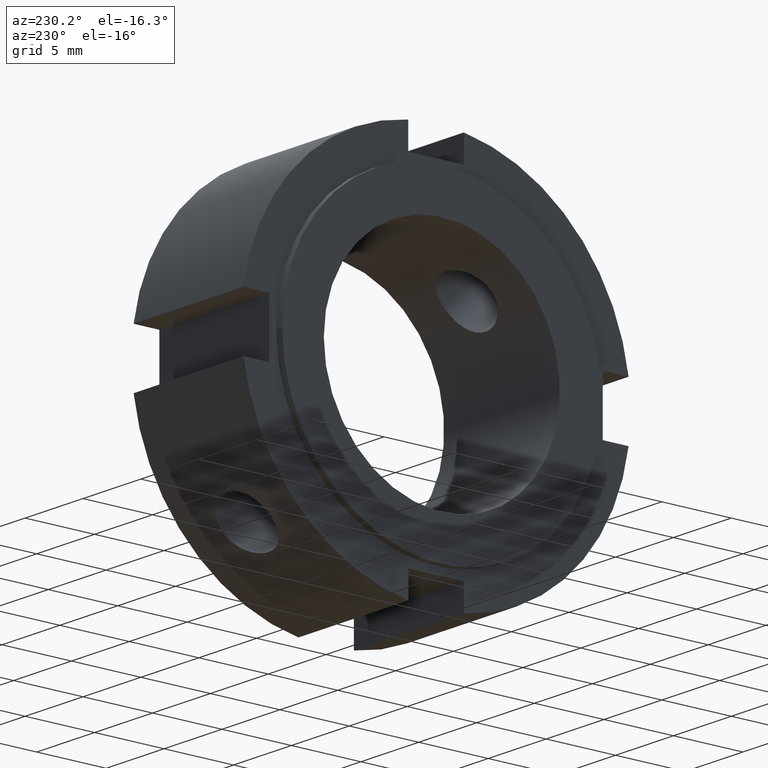
[diagram: clean part render]
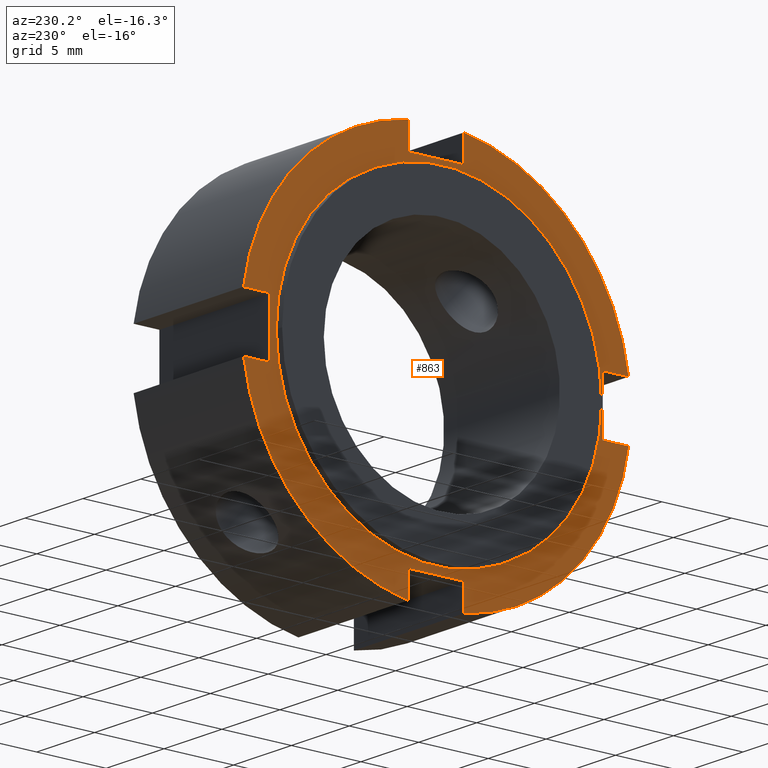
[diagram: same view with one face highlighted and labeled with its STEP entity id]
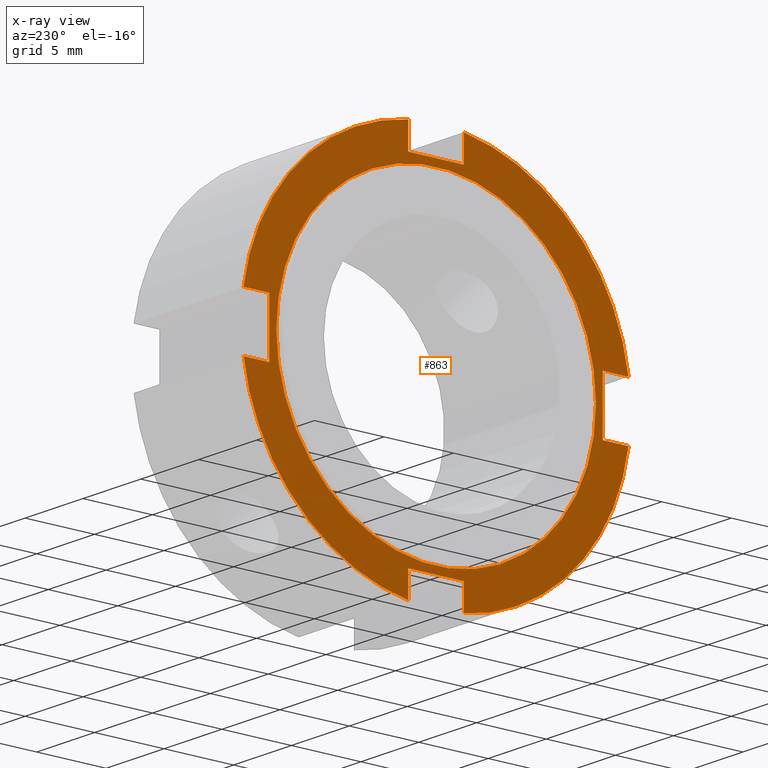
[diagram: x-ray of the same camera — body ghosted, the highlighted face saturated]
A machine part, auxiliary view. The second image highlights one B-rep face of the part: STEP entity #863.
The next image is the same camera in x-ray: the body ghosted, the highlighted face saturated — about 0% of this face is hidden behind the body in this view.
In plain terms, the highlighted planar face has unit normal (-1, 0, 0).
Its self-contained STEP definition (entity closure, byte-faithful):
#249=CARTESIAN_POINT('',(0.499999999999998,-2.000000000000002,-12.0));
#250=VERTEX_POINT('',#249);
#251=CARTESIAN_POINT('',(0.499999999999998,-2.000000000000002,-13.856406460551014));
#252=VERTEX_POINT('',#251);
#253=CARTESIAN_POINT('',(0.499999999999998,-2.000000000000002,-12.0));
#254=DIRECTION('',(0.0,0.0,-1.0));
#255=VECTOR('',#254,1.856406460551014);
#256=LINE('',#253,#255);
#257=EDGE_CURVE('',#250,#252,#256,.T.);
#289=CARTESIAN_POINT('',(0.499999999999998,1.999999999999997,-13.856406460551014));
#290=VERTEX_POINT('',#289);
#291=CARTESIAN_POINT('',(0.499999999999998,1.999999999999998,-12.0));
#292=VERTEX_POINT('',#291);
#293=CARTESIAN_POINT('',(0.499999999999998,1.999999999999997,-13.856406460551014));
#294=DIRECTION('',(0.0,0.0,1.0));
#295=VECTOR('',#294,1.856406460551014);
#296=LINE('',#293,#295);
#297=EDGE_CURVE('',#290,#292,#296,.T.);
#329=CARTESIAN_POINT('',(0.499999999999998,1.999999999999997,-12.0));
#330=DIRECTION('',(0.0,-1.0,0.0));
#331=VECTOR('',#330,3.999999999999998);
#332=LINE('',#329,#331);
#333=EDGE_CURVE('',#292,#250,#332,.T.);
#351=CARTESIAN_POINT('',(0.499999999999998,-12.0,2.000000000000001));
#352=VERTEX_POINT('',#351);
#353=CARTESIAN_POINT('',(0.499999999999998,-13.856406460551014,2.000000000000001));
#354=VERTEX_POINT('',#353);
#355=CARTESIAN_POINT('',(0.499999999999998,-12.0,2.000000000000001));
#356=DIRECTION('',(0.0,-1.0,0.0));
#357=VECTOR('',#356,1.856406460551014);
#358=LINE('',#355,#357);
#359=EDGE_CURVE('',#352,#354,#358,.T.);
#391=CARTESIAN_POINT('',(0.499999999999998,-13.856406460551014,-1.999999999999998));
#392=VERTEX_POINT('',#391);
#393=CARTESIAN_POINT('',(0.499999999999998,-12.0,-1.999999999999998));
#394=VERTEX_POINT('',#393);
#395=CARTESIAN_POINT('',(0.499999999999998,-13.856406460551014,-1.999999999999998));
#396=DIRECTION('',(0.0,1.0,0.0));
#397=VECTOR('',#396,1.856406460551014);
#398=LINE('',#395,#397);
#399=EDGE_CURVE('',#392,#394,#398,.T.);
#431=CARTESIAN_POINT('',(0.499999999999998,-11.999999999999996,-1.999999999999998));
#432=DIRECTION('',(0.0,0.0,1.0));
#433=VECTOR('',#432,4.0);
#434=LINE('',#431,#433);
#435=EDGE_CURVE('',#394,#352,#434,.T.);
#453=CARTESIAN_POINT('',(0.499999999999998,2.000000000000001,12.0));
#454=VERTEX_POINT('',#453);
#455=CARTESIAN_POINT('',(0.499999999999998,2.000000000000001,13.856406460551014));
#456=VERTEX_POINT('',#455);
#457=CARTESIAN_POINT('',(0.499999999999998,2.000000000000002,12.0));
#458=DIRECTION('',(0.0,0.0,1.0));
#459=VECTOR('',#458,1.856406460551014);
#460=LINE('',#457,#459);
#461=EDGE_CURVE('',#454,#456,#460,.T.);
#493=CARTESIAN_POINT('',(0.499999999999998,-1.999999999999999,13.856406460551014));
#494=VERTEX_POINT('',#493);
#495=CARTESIAN_POINT('',(0.499999999999998,-1.999999999999999,12.0));
#496=VERTEX_POINT('',#495);
#497=CARTESIAN_POINT('',(0.499999999999998,-1.999999999999999,13.856406460551014));
#498=DIRECTION('',(0.0,0.0,-1.0));
#499=VECTOR('',#498,1.856406460551014);
#500=LINE('',#497,#499);
#501=EDGE_CURVE('',#494,#496,#500,.T.);
#533=CARTESIAN_POINT('',(0.499999999999998,-1.999999999999998,12.0));
#534=DIRECTION('',(0.0,1.0,0.0));
#535=VECTOR('',#534,3.999999999999999);
#536=LINE('',#533,#535);
#537=EDGE_CURVE('',#496,#454,#536,.T.);
#565=CARTESIAN_POINT('',(0.499999999999998,13.856406460551014,2.000000000000000));
#566=VERTEX_POINT('',#565);
#573=CARTESIAN_POINT('',(0.499999999999998,0.0,0.0));
#574=DIRECTION('',(1.0,0.0,0.0));
#575=DIRECTION('',(0.0,1.0,0.0));
#576=AXIS2_PLACEMENT_3D('',#573,#574,#575);
#577=CIRCLE('',#576,13.999999999999996);
#578=EDGE_CURVE('',#566,#456,#577,.T.);
#597=CARTESIAN_POINT('',(0.499999999999998,0.0,0.0));
#598=DIRECTION('',(1.0,0.0,0.0));
#599=DIRECTION('',(0.0,1.0,0.0));
#600=AXIS2_PLACEMENT_3D('',#597,#598,#599);
#601=CIRCLE('',#600,13.999999999999996);
#602=EDGE_CURVE('',#494,#354,#601,.T.);
#616=CARTESIAN_POINT('',(0.499999999999998,13.856406460551014,-2.000000000000000));
#617=VERTEX_POINT('',#616);
#618=CARTESIAN_POINT('',(0.499999999999998,0.0,0.0));
#619=DIRECTION('',(1.0,0.0,0.0));
#620=DIRECTION('',(0.0,1.0,0.0));
#621=AXIS2_PLACEMENT_3D('',#618,#619,#620);
#622=CIRCLE('',#621,13.999999999999996);
#623=EDGE_CURVE('',#290,#617,#622,.T.);
#660=CARTESIAN_POINT('',(0.499999999999998,0.0,0.0));
#661=DIRECTION('',(1.0,0.0,0.0));
#662=DIRECTION('',(0.0,1.0,0.0));
#663=AXIS2_PLACEMENT_3D('',#660,#661,#662);
#664=CIRCLE('',#663,13.999999999999996);
#665=EDGE_CURVE('',#392,#252,#664,.T.);
#729=CARTESIAN_POINT('',(0.499999999999998,12.0,-2.000000000000000));
#730=VERTEX_POINT('',#729);
#731=CARTESIAN_POINT('',(0.499999999999998,12.0,-2.000000000000000));
#732=DIRECTION('',(0.0,1.0,0.0));
#733=VECTOR('',#732,1.856406460551014);
#734=LINE('',#731,#733);
#735=EDGE_CURVE('',#730,#617,#734,.T.);
#753=CARTESIAN_POINT('',(0.499999999999998,12.0,2.000000000000000));
#754=VERTEX_POINT('',#753);
#755=CARTESIAN_POINT('',(0.499999999999998,13.856406460551014,2.000000000000000));
#756=DIRECTION('',(0.0,-1.0,0.0));
#757=VECTOR('',#756,1.856406460551014);
#758=LINE('',#755,#757);
#759=EDGE_CURVE('',#566,#754,#758,.T.);
#777=CARTESIAN_POINT('',(0.499999999999998,11.999999999999996,2.000000000000000));
#778=DIRECTION('',(0.0,0.0,-1.0));
#779=VECTOR('',#778,4.0);
#780=LINE('',#777,#779);
#781=EDGE_CURVE('',#754,#730,#780,.T.);
#822=CARTESIAN_POINT('',(0.499999999999998,11.500000000000000,0.0));
#823=VERTEX_POINT('',#822);
#824=CARTESIAN_POINT('',(0.499999999999998,0.0,0.0));
#825=DIRECTION('',(1.0,0.0,0.0));
#826=DIRECTION('',(0.0,1.0,0.0));
#827=AXIS2_PLACEMENT_3D('',#824,#825,#826);
#828=CIRCLE('',#827,11.500000000000000);
#829=EDGE_CURVE('',#823,#823,#828,.T.);
#837=CARTESIAN_POINT('',(0.499999999999998,12.750000000000000,0.0));
#838=DIRECTION('',(-1.0,0.0,0.0));
#839=DIRECTION('',(0.0,0.0,1.0));
#840=AXIS2_PLACEMENT_3D('',#837,#838,#839);
#841=PLANE('',#840);
#842=ORIENTED_EDGE('',*,*,#257,.T.);
#843=ORIENTED_EDGE('',*,*,#665,.F.);
#844=ORIENTED_EDGE('',*,*,#399,.T.);
#845=ORIENTED_EDGE('',*,*,#435,.T.);
#846=ORIENTED_EDGE('',*,*,#359,.T.);
#847=ORIENTED_EDGE('',*,*,#602,.F.);
#848=ORIENTED_EDGE('',*,*,#501,.T.);
#849=ORIENTED_EDGE('',*,*,#537,.T.);
#850=ORIENTED_EDGE('',*,*,#461,.T.);
#851=ORIENTED_EDGE('',*,*,#578,.F.);
#852=ORIENTED_EDGE('',*,*,#759,.T.);
#853=ORIENTED_EDGE('',*,*,#781,.T.);
#854=ORIENTED_EDGE('',*,*,#735,.T.);
#855=ORIENTED_EDGE('',*,*,#623,.F.);
#856=ORIENTED_EDGE('',*,*,#297,.T.);
#857=ORIENTED_EDGE('',*,*,#333,.T.);
#858=EDGE_LOOP('',(#842,#843,#844,#845,#846,#847,#848,#849,#850,#851,#852,#853,#854,#855,#856,#857));
#859=FACE_OUTER_BOUND('',#858,.T.);
#860=ORIENTED_EDGE('',*,*,#829,.T.);
#861=EDGE_LOOP('',(#860));
#862=FACE_BOUND('',#861,.T.);
#863=ADVANCED_FACE('',(#859,#862),#841,.T.);